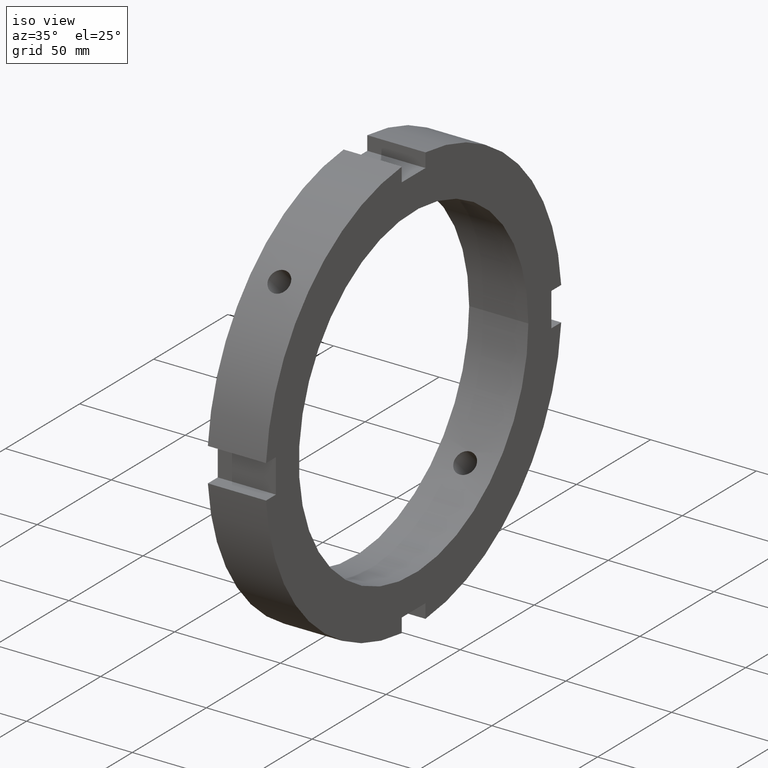
[diagram: clean part render]
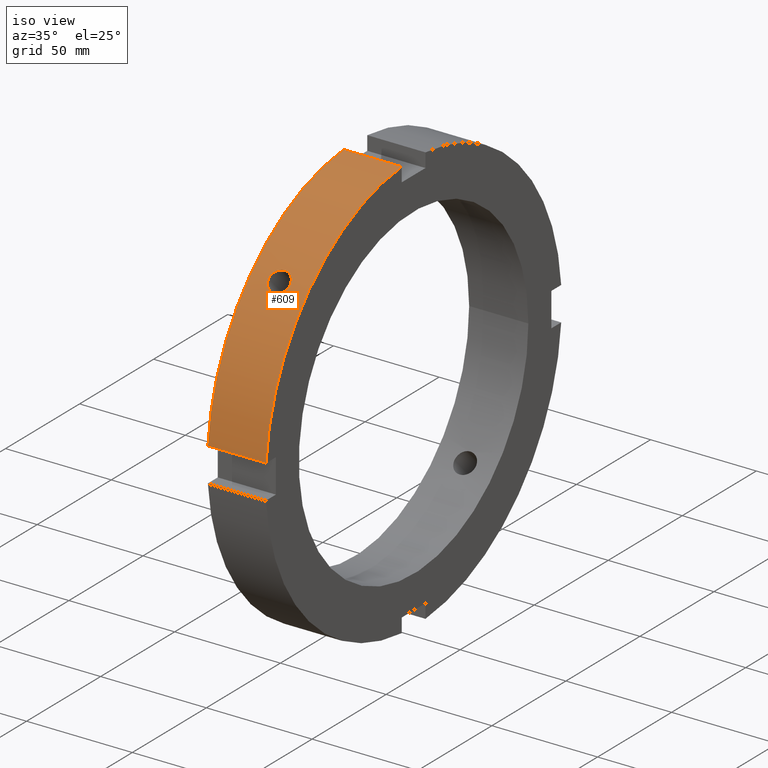
[diagram: same view with one face highlighted and labeled with its STEP entity id]
A machine part, iso view. The second image highlights one B-rep face of the part: STEP entity #609.
In plain terms, the highlighted cylindrical surface (partial cylindrical patch) has radius 100 mm, axis along (1, 0, 0).
Its self-contained STEP definition (entity closure, byte-faithful):
#73=CARTESIAN_POINT('',(13.999999999999984,-74.193358875861520,67.047337745190291));
#74=VERTEX_POINT('',#73);
#75=CARTESIAN_POINT('',(13.999999999999982,-74.193358875861520,67.047337745190291));
#76=CARTESIAN_POINT('',(13.365418063280634,-74.193358875861520,67.047337745190291));
#77=CARTESIAN_POINT('',(12.688612031089034,-74.108383700795059,67.141746327502403));
#78=CARTESIAN_POINT('',(11.443689227993922,-73.760763251919187,67.523451030525507));
#79=CARTESIAN_POINT('',(10.875563298343742,-73.497876808904877,67.810497567163409));
#80=CARTESIAN_POINT('',(9.978415669830934,-72.886178554204207,68.467557656156416));
#81=CARTESIAN_POINT('',(9.589554256826402,-72.496526139868010,68.881356700433244));
#82=CARTESIAN_POINT('',(9.073843431907362,-71.633259416526187,69.778676890604885));
#83=CARTESIAN_POINT('',(8.946999999999985,-71.159395210449944,70.261961026859552));
#84=CARTESIAN_POINT('',(8.946999999999983,-70.261961026859552,71.159395210449958));
#85=CARTESIAN_POINT('',(9.073843431907353,-69.778676890604899,71.633259416526187));
#86=CARTESIAN_POINT('',(9.589554256826387,-68.881356700433244,72.496526139868010));
#87=CARTESIAN_POINT('',(9.978415669830930,-68.467557656156401,72.886178554204207));
#88=CARTESIAN_POINT('',(10.875563298343740,-67.810497567163409,73.497876808904877));
#89=CARTESIAN_POINT('',(11.443689227993916,-67.523451030525493,73.760763251919201));
#90=CARTESIAN_POINT('',(12.688612031089029,-67.141746327502375,74.108383700795073));
#91=CARTESIAN_POINT('',(13.365418063280634,-67.047337745190291,74.193358875861520));
#92=CARTESIAN_POINT('',(14.634581936719332,-67.047337745190291,74.193358875861534));
#93=CARTESIAN_POINT('',(15.311387968910939,-67.141746327502375,74.108383700795073));
#94=CARTESIAN_POINT('',(16.556310772006050,-67.523451030525493,73.760763251919201));
#95=CARTESIAN_POINT('',(17.124436701656226,-67.810497567163409,73.497876808904877));
#96=CARTESIAN_POINT('',(18.021584330169034,-68.467557656156401,72.886178554204207));
#97=CARTESIAN_POINT('',(18.410445743173579,-68.881356700433244,72.496526139868010));
#98=CARTESIAN_POINT('',(18.926156568092615,-69.778676890604899,71.633259416526187));
#99=CARTESIAN_POINT('',(19.052999999999983,-70.261961026859552,71.159395210449958));
#100=CARTESIAN_POINT('',(19.052999999999983,-71.159395210449944,70.261961026859552));
#101=CARTESIAN_POINT('',(18.926156568092608,-71.633259416526187,69.778676890604885));
#102=CARTESIAN_POINT('',(18.410445743173565,-72.496526139868010,68.881356700433244));
#103=CARTESIAN_POINT('',(18.021584330169034,-72.886178554204207,68.467557656156416));
#104=CARTESIAN_POINT('',(17.124436701656226,-73.497876808904877,67.810497567163424));
#105=CARTESIAN_POINT('',(16.556310772006050,-73.760763251919172,67.523451030525507));
#106=CARTESIAN_POINT('',(15.311387968910939,-74.108383700795045,67.141746327502403));
#107=CARTESIAN_POINT('',(14.634581936719332,-74.193358875861520,67.047337745190291));
#108=CARTESIAN_POINT('',(13.999999999999984,-74.193358875861520,67.047337745190291));
#109=B_SPLINE_CURVE_WITH_KNOTS('',3,(#75,#76,#77,#78,#79,#80,#81,#82,#83,#84,#85,#86,#87,#88,#89,#90,#91,#92,#93,#94,#95,#96,#97,#98,#99,#100,#101,#102,#103,#104,#105,#106,#107,#108),.UNSPECIFIED.,.T.,.U.,(4,2,2,2,2,2,2,2,2,2,2,2,2,2,2,2,4),(0.0,0.190374581015804,0.380749162031609,0.571123701097224,0.761498240162839,0.951872779228454,1.142247318294069,1.332621899309873,1.522996480325678,1.713371061341482,1.903745642357287,2.094120181422902,2.284494720488517,2.474869259554132,2.665243798619747,2.855618379635551,3.045992960651356),.UNSPECIFIED.);
#110=EDGE_CURVE('',#74,#74,#109,.T.);
#353=CARTESIAN_POINT('',(0.499999999999972,-99.679486355016905,8.000000000000005));
#354=VERTEX_POINT('',#353);
#369=CARTESIAN_POINT('',(27.999999999999979,-99.679486355016905,8.000000000000005));
#370=VERTEX_POINT('',#369);
#377=CARTESIAN_POINT('',(0.499999999999972,-99.679486355016905,8.000000000000007));
#378=DIRECTION('',(1.0,0.0,0.0));
#379=VECTOR('',#378,27.500000000000007);
#380=LINE('',#377,#379);
#381=EDGE_CURVE('',#354,#370,#380,.T.);
#493=CARTESIAN_POINT('',(0.499999999999972,-7.999999999999989,99.679486355016905));
#494=VERTEX_POINT('',#493);
#503=CARTESIAN_POINT('',(27.999999999999979,-7.999999999999989,99.679486355016905));
#504=VERTEX_POINT('',#503);
#505=CARTESIAN_POINT('',(27.999999999999979,-7.999999999999989,99.679486355016905));
#506=DIRECTION('',(-1.0,0.0,0.0));
#507=VECTOR('',#506,27.500000000000007);
#508=LINE('',#505,#507);
#509=EDGE_CURVE('',#504,#494,#508,.T.);
#583=CARTESIAN_POINT('',(14.249999999999975,0.0,0.0));
#584=DIRECTION('',(1.0,0.0,0.0));
#585=DIRECTION('',(0.0,1.0,0.0));
#586=AXIS2_PLACEMENT_3D('',#583,#584,#585);
#587=CYLINDRICAL_SURFACE('',#586,100.0);
#588=ORIENTED_EDGE('',*,*,#381,.T.);
#589=CARTESIAN_POINT('',(27.999999999999979,0.0,0.0));
#590=DIRECTION('',(1.0,0.0,0.0));
#591=DIRECTION('',(0.0,1.0,0.0));
#592=AXIS2_PLACEMENT_3D('',#589,#590,#591);
#593=CIRCLE('',#592,100.0);
#594=EDGE_CURVE('',#504,#370,#593,.T.);
#595=ORIENTED_EDGE('',*,*,#594,.F.);
#596=ORIENTED_EDGE('',*,*,#509,.T.);
#597=CARTESIAN_POINT('',(0.499999999999972,0.0,0.0));
#598=DIRECTION('',(1.0,0.0,0.0));
#599=DIRECTION('',(0.0,1.0,0.0));
#600=AXIS2_PLACEMENT_3D('',#597,#598,#599);
#601=CIRCLE('',#600,100.0);
#602=EDGE_CURVE('',#494,#354,#601,.T.);
#603=ORIENTED_EDGE('',*,*,#602,.T.);
#604=EDGE_LOOP('',(#588,#595,#596,#603));
#605=FACE_OUTER_BOUND('',#604,.T.);
#606=ORIENTED_EDGE('',*,*,#110,.T.);
#607=EDGE_LOOP('',(#606));
#608=FACE_BOUND('',#607,.T.);
#609=ADVANCED_FACE('',(#605,#608),#587,.T.);